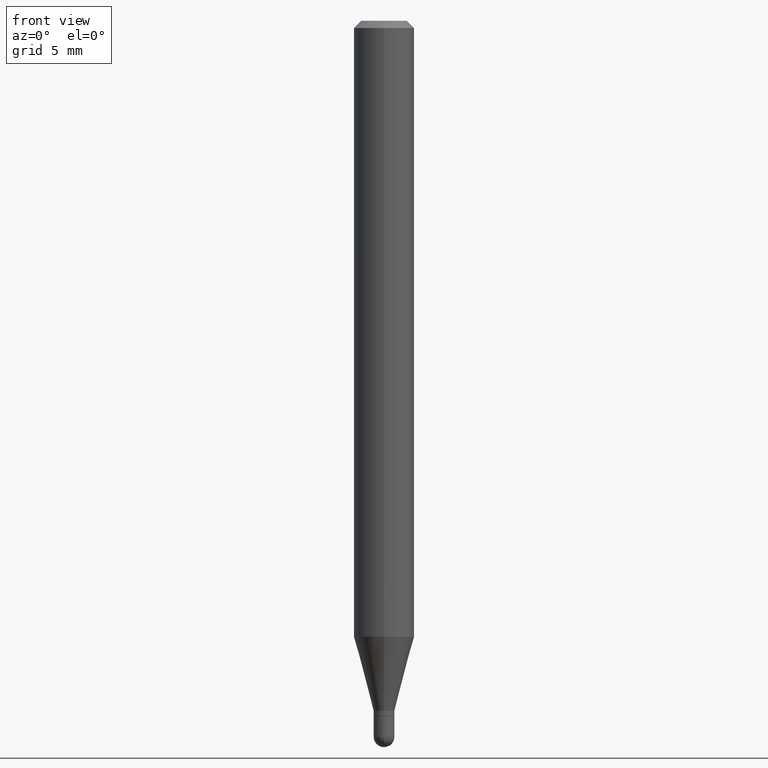
[diagram: clean part render]
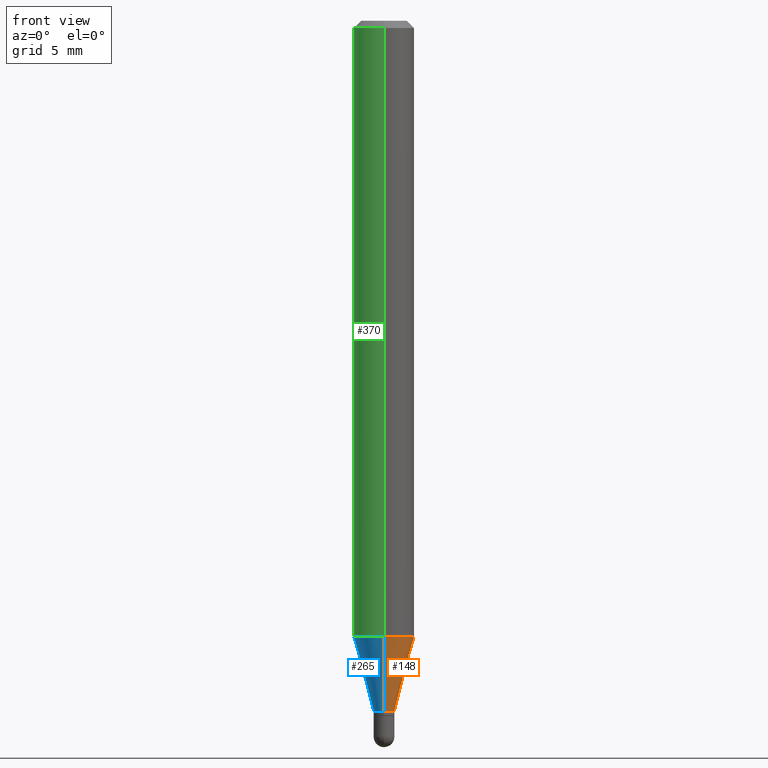
[diagram: same view with three faces highlighted in distinct colors, each labeled with its STEP entity id]
A machine part, front view with three faces highlighted in distinct colors.
Their STEP definitions:

[orange] entity #148 — the highlighted conical surface has half-angle 15 deg.
#3 = CIRCLE ( 'NONE', #387, 0.02149999999999991848 ) ;
#10 = DIRECTION ( 'NONE',  ( -2.445456596883876377E-29, 3.491498823257460544E-15, 1.000000000000000000 ) ) ;
#14 = CARTESIAN_POINT ( 'NONE',  ( 2.984279490192748343E-16, 0.02149999999999494329, -1.425000000000000266 ) ) ;
#24 = VERTEX_POINT ( 'NONE', #110 ) ;
#39 = FACE_OUTER_BOUND ( 'NONE', #140, .T. ) ;
#43 = VECTOR ( 'NONE', #472, 39.37007874015748143 ) ;
#110 = CARTESIAN_POINT ( 'NONE',  ( 4.440892098500934804E-16, 0.06249999999999553135, -1.271985916889676771 ) ) ;
#117 = DIRECTION ( 'NONE',  ( -6.982962677686266711E-15, -1.000000000000000000, 0.000000000000000000 ) ) ;
#129 = DIRECTION ( 'NONE',  ( 1.839019923739601104E-15, 0.2588190451025250693, 0.9659258262890670910 ) ) ;
#130 = CARTESIAN_POINT ( 'NONE',  ( 3.110586351601244859E-29, -4.441137332020368140E-15, -1.271985916889676549 ) ) ;
#140 = EDGE_LOOP ( 'NONE', ( #159, #161, #299, #343 ) ) ;
#148 = ADVANCED_FACE ( 'NONE', ( #39 ), #182, .T. ) ;
#152 = CARTESIAN_POINT ( 'NONE',  ( -1.501336975702193055E-16, -0.02150000000000489714, -1.425000000000000266 ) ) ;
#159 = ORIENTED_EDGE ( 'NONE', *, *, #230, .T. ) ;
#161 = ORIENTED_EDGE ( 'NONE', *, *, #376, .T. ) ;
#163 = LINE ( 'NONE', #415, #414 ) ;
#175 = CIRCLE ( 'NONE', #471, 0.06250000000000000000 ) ;
#182 = CONICAL_SURFACE ( 'NONE', #398, 0.02149999999999991848, 0.2617993877991502960 ) ;
#203 = CARTESIAN_POINT ( 'NONE',  ( 3.484775650559524181E-29, -4.975385823141882054E-15, -1.425000000000000266 ) ) ;
#210 = EDGE_CURVE ( 'NONE', #384, #501, #356, .T. ) ;
#220 = CARTESIAN_POINT ( 'NONE',  ( -4.364351673553605587E-16, -0.06250000000000445477, -1.271985916889676327 ) ) ;
#230 = EDGE_CURVE ( 'NONE', #384, #499, #3, .T. ) ;
#238 = CARTESIAN_POINT ( 'NONE',  ( 3.484775650559524181E-29, -4.975385823141882054E-15, -1.425000000000000266 ) ) ;
#240 = DIRECTION ( 'NONE',  ( -2.445456596883876377E-29, 3.491498823257460544E-15, 1.000000000000000000 ) ) ;
#288 = CARTESIAN_POINT ( 'NONE',  ( -1.501336975702193055E-16, -0.02150000000000489714, -1.425000000000000266 ) ) ;
#299 = ORIENTED_EDGE ( 'NONE', *, *, #336, .F. ) ;
#336 = EDGE_CURVE ( 'NONE', #501, #24, #175, .T. ) ;
#343 = ORIENTED_EDGE ( 'NONE', *, *, #210, .F. ) ;
#356 = LINE ( 'NONE', #152, #43 ) ;
#376 = EDGE_CURVE ( 'NONE', #499, #24, #163, .T. ) ;
#384 = VERTEX_POINT ( 'NONE', #288 ) ;
#387 = AXIS2_PLACEMENT_3D ( 'NONE', #203, #240, #479 ) ;
#398 = AXIS2_PLACEMENT_3D ( 'NONE', #238, #476, #117 ) ;
#414 = VECTOR ( 'NONE', #129, 39.37007874015748143 ) ;
#415 = CARTESIAN_POINT ( 'NONE',  ( 1.527666881884557939E-16, 0.02149999999999494329, -1.425000000000000266 ) ) ;
#471 = AXIS2_PLACEMENT_3D ( 'NONE', #130, #10, #487 ) ;
#472 = DIRECTION ( 'NONE',  ( -1.807323732225330928E-15, -0.2588190451025182970, 0.9659258262890689783 ) ) ;
#476 = DIRECTION ( 'NONE',  ( -2.445456596883876377E-29, 3.491498823257460544E-15, 1.000000000000000000 ) ) ;
#479 = DIRECTION ( 'NONE',  ( -6.982962677686266711E-15, -1.000000000000000000, 0.000000000000000000 ) ) ;
#487 = DIRECTION ( 'NONE',  ( -6.982962677686265922E-15, -1.000000000000000000, 4.370956789862821150E-15 ) ) ;
#499 = VERTEX_POINT ( 'NONE', #14 ) ;
#501 = VERTEX_POINT ( 'NONE', #220 ) ;

[blue] entity #265 — the highlighted conical surface has half-angle 15 deg.
#14 = CARTESIAN_POINT ( 'NONE',  ( 2.984279490192748343E-16, 0.02149999999999494329, -1.425000000000000266 ) ) ;
#24 = VERTEX_POINT ( 'NONE', #110 ) ;
#27 = CIRCLE ( 'NONE', #208, 0.06250000000000000000 ) ;
#36 = AXIS2_PLACEMENT_3D ( 'NONE', #273, #155, #192 ) ;
#43 = VECTOR ( 'NONE', #472, 39.37007874015748143 ) ;
#80 = EDGE_LOOP ( 'NONE', ( #500, #468, #420, #277 ) ) ;
#98 = EDGE_CURVE ( 'NONE', #499, #384, #158, .T. ) ;
#110 = CARTESIAN_POINT ( 'NONE',  ( 4.440892098500934804E-16, 0.06249999999999553135, -1.271985916889676771 ) ) ;
#124 = CARTESIAN_POINT ( 'NONE',  ( 3.484775650559524181E-29, -4.975385823141882054E-15, -1.425000000000000266 ) ) ;
#129 = DIRECTION ( 'NONE',  ( 1.839019923739601104E-15, 0.2588190451025250693, 0.9659258262890670910 ) ) ;
#152 = CARTESIAN_POINT ( 'NONE',  ( -1.501336975702193055E-16, -0.02150000000000489714, -1.425000000000000266 ) ) ;
#155 = DIRECTION ( 'NONE',  ( -2.445456596883876377E-29, 3.491498823257460544E-15, 1.000000000000000000 ) ) ;
#158 = CIRCLE ( 'NONE', #36, 0.02149999999999991848 ) ;
#162 = DIRECTION ( 'NONE',  ( -2.445456596883876377E-29, 3.491498823257460544E-15, 1.000000000000000000 ) ) ;
#163 = LINE ( 'NONE', #415, #414 ) ;
#192 = DIRECTION ( 'NONE',  ( -6.982962677686266711E-15, -1.000000000000000000, 0.000000000000000000 ) ) ;
#193 = AXIS2_PLACEMENT_3D ( 'NONE', #124, #162, #246 ) ;
#208 = AXIS2_PLACEMENT_3D ( 'NONE', #377, #461, #295 ) ;
#210 = EDGE_CURVE ( 'NONE', #384, #501, #356, .T. ) ;
#220 = CARTESIAN_POINT ( 'NONE',  ( -4.364351673553605587E-16, -0.06250000000000445477, -1.271985916889676327 ) ) ;
#246 = DIRECTION ( 'NONE',  ( -6.982962677686266711E-15, -1.000000000000000000, 0.000000000000000000 ) ) ;
#265 = ADVANCED_FACE ( 'NONE', ( #403 ), #508, .T. ) ;
#273 = CARTESIAN_POINT ( 'NONE',  ( 3.484775650559524181E-29, -4.975385823141882054E-15, -1.425000000000000266 ) ) ;
#277 = ORIENTED_EDGE ( 'NONE', *, *, #483, .F. ) ;
#288 = CARTESIAN_POINT ( 'NONE',  ( -1.501336975702193055E-16, -0.02150000000000489714, -1.425000000000000266 ) ) ;
#295 = DIRECTION ( 'NONE',  ( -6.982962677686265922E-15, -1.000000000000000000, 4.370956789862821150E-15 ) ) ;
#356 = LINE ( 'NONE', #152, #43 ) ;
#376 = EDGE_CURVE ( 'NONE', #499, #24, #163, .T. ) ;
#377 = CARTESIAN_POINT ( 'NONE',  ( 3.110586351601244859E-29, -4.441137332020368140E-15, -1.271985916889676549 ) ) ;
#384 = VERTEX_POINT ( 'NONE', #288 ) ;
#403 = FACE_OUTER_BOUND ( 'NONE', #80, .T. ) ;
#414 = VECTOR ( 'NONE', #129, 39.37007874015748143 ) ;
#415 = CARTESIAN_POINT ( 'NONE',  ( 1.527666881884557939E-16, 0.02149999999999494329, -1.425000000000000266 ) ) ;
#420 = ORIENTED_EDGE ( 'NONE', *, *, #210, .T. ) ;
#461 = DIRECTION ( 'NONE',  ( -2.445456596883876377E-29, 3.491498823257460544E-15, 1.000000000000000000 ) ) ;
#468 = ORIENTED_EDGE ( 'NONE', *, *, #98, .T. ) ;
#472 = DIRECTION ( 'NONE',  ( -1.807323732225330928E-15, -0.2588190451025182970, 0.9659258262890689783 ) ) ;
#483 = EDGE_CURVE ( 'NONE', #24, #501, #27, .T. ) ;
#499 = VERTEX_POINT ( 'NONE', #14 ) ;
#500 = ORIENTED_EDGE ( 'NONE', *, *, #376, .F. ) ;
#501 = VERTEX_POINT ( 'NONE', #220 ) ;
#508 = CONICAL_SURFACE ( 'NONE', #193, 0.02149999999999991848, 0.2617993877991502960 ) ;

[green] entity #370 — the highlighted cylindrical surface (edge-blend (fillet) strip) has radius 1.5875 mm, axis along (-0, 0, 1).
#7 = CARTESIAN_POINT ( 'NONE',  ( 4.440892098500938748E-16, 0.06249999999999995143, -0.01500000000000022669 ) ) ;
#17 = AXIS2_PLACEMENT_3D ( 'NONE', #490, #371, #332 ) ;
#20 = DIRECTION ( 'NONE',  ( -2.445456596883876658E-29, 3.491498823257460150E-15, 1.000000000000000000 ) ) ;
#24 = VERTEX_POINT ( 'NONE', #110 ) ;
#27 = CIRCLE ( 'NONE', #208, 0.06250000000000000000 ) ;
#38 = DIRECTION ( 'NONE',  ( -2.445456596883876658E-29, 3.491498823257460150E-15, 1.000000000000000000 ) ) ;
#110 = CARTESIAN_POINT ( 'NONE',  ( 4.440892098500934804E-16, 0.06249999999999553135, -1.271985916889676771 ) ) ;
#118 = EDGE_CURVE ( 'NONE', #501, #150, #269, .T. ) ;
#134 = AXIS2_PLACEMENT_3D ( 'NONE', #328, #365, #486 ) ;
#135 = CARTESIAN_POINT ( 'NONE',  ( 4.440892098500625669E-16, 0.06250000000000000000, -2.182186764535912840E-16 ) ) ;
#150 = VERTEX_POINT ( 'NONE', #437 ) ;
#208 = AXIS2_PLACEMENT_3D ( 'NONE', #377, #461, #295 ) ;
#220 = CARTESIAN_POINT ( 'NONE',  ( -4.364351673553605587E-16, -0.06250000000000445477, -1.271985916889676327 ) ) ;
#229 = ORIENTED_EDGE ( 'NONE', *, *, #483, .T. ) ;
#247 = CYLINDRICAL_SURFACE ( 'NONE', #17, 0.06250000000000000000 ) ;
#262 = LINE ( 'NONE', #135, #281 ) ;
#269 = LINE ( 'NONE', #397, #298 ) ;
#281 = VECTOR ( 'NONE', #20, 39.37007874015748143 ) ;
#284 = EDGE_CURVE ( 'NONE', #422, #150, #290, .T. ) ;
#290 = CIRCLE ( 'NONE', #134, 0.06250000000000000000 ) ;
#295 = DIRECTION ( 'NONE',  ( -6.982962677686265922E-15, -1.000000000000000000, 4.370956789862821150E-15 ) ) ;
#298 = VECTOR ( 'NONE', #38, 39.37007874015748143 ) ;
#318 = ORIENTED_EDGE ( 'NONE', *, *, #118, .T. ) ;
#328 = CARTESIAN_POINT ( 'NONE',  ( 3.668184895325816808E-31, -5.237248234886194588E-17, -0.01500000000000000812 ) ) ;
#332 = DIRECTION ( 'NONE',  ( -6.982962677686265922E-15, -1.000000000000000000, 3.491498823257460544E-15 ) ) ;
#365 = DIRECTION ( 'NONE',  ( -2.445456596883876377E-29, 3.491498823257460544E-15, 1.000000000000000000 ) ) ;
#370 = ADVANCED_FACE ( 'NONE', ( #375 ), #247, .T. ) ;
#371 = DIRECTION ( 'NONE',  ( -2.445456596883876377E-29, 3.491498823257460544E-15, 1.000000000000000000 ) ) ;
#375 = FACE_OUTER_BOUND ( 'NONE', #383, .T. ) ;
#377 = CARTESIAN_POINT ( 'NONE',  ( 3.110586351601244859E-29, -4.441137332020368140E-15, -1.271985916889676549 ) ) ;
#383 = EDGE_LOOP ( 'NONE', ( #411, #229, #318, #480 ) ) ;
#397 = CARTESIAN_POINT ( 'NONE',  ( -4.364351673553916201E-16, -0.06250000000000000000, 2.182186764535912840E-16 ) ) ;
#411 = ORIENTED_EDGE ( 'NONE', *, *, #503, .F. ) ;
#422 = VERTEX_POINT ( 'NONE', #7 ) ;
#437 = CARTESIAN_POINT ( 'NONE',  ( -4.364351673553912750E-16, -0.06250000000000005551, -0.01499999999999979128 ) ) ;
#461 = DIRECTION ( 'NONE',  ( -2.445456596883876377E-29, 3.491498823257460544E-15, 1.000000000000000000 ) ) ;
#480 = ORIENTED_EDGE ( 'NONE', *, *, #284, .F. ) ;
#483 = EDGE_CURVE ( 'NONE', #24, #501, #27, .T. ) ;
#486 = DIRECTION ( 'NONE',  ( -6.982962677686265922E-15, -1.000000000000000000, 3.483106191921935554E-15 ) ) ;
#490 = CARTESIAN_POINT ( 'NONE',  ( 0.000000000000000000, 0.000000000000000000, 0.000000000000000000 ) ) ;
#501 = VERTEX_POINT ( 'NONE', #220 ) ;
#503 = EDGE_CURVE ( 'NONE', #24, #422, #262, .T. ) ;